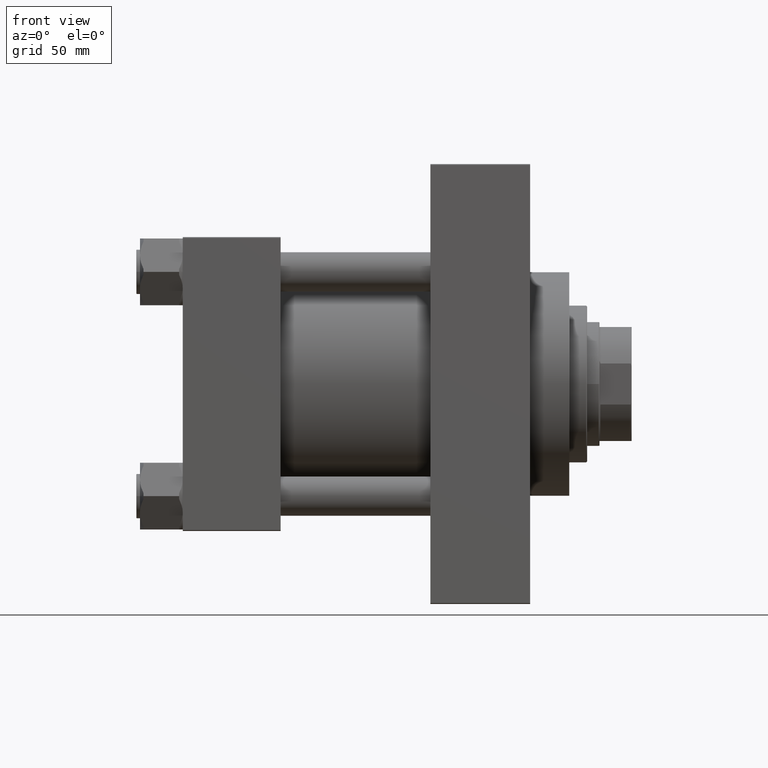
[diagram: clean part render]
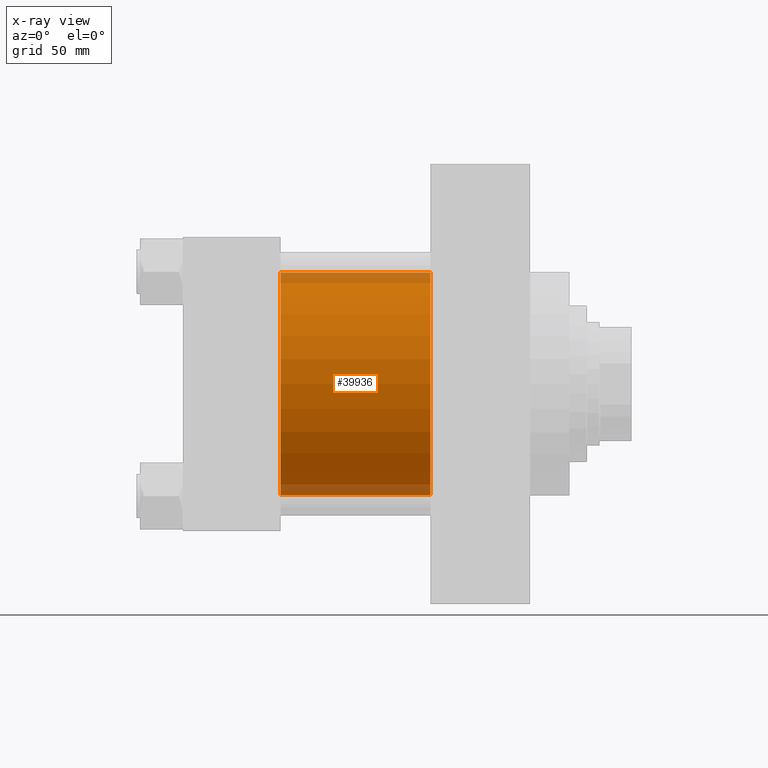
[diagram: x-ray — body ghosted, one internal face saturated and labeled with its STEP entity id]
A machine part, front view, then the same camera in x-ray: the body is ghosted and one INTERNAL B-rep face — a face not visible from any outside direction — is saturated and labeled: STEP entity #39936.
In plain terms, the highlighted cylindrical surface (partial cylindrical patch) has radius 62.5 mm, axis along (-1, -0, -0).
Its self-contained STEP definition (entity closure, byte-faithful):
#2816 = CARTESIAN_POINT ( 'NONE',  ( 139.0000000000000000, -2.602085213965210642E-15, 62.50000000000000000 ) ) ;
#3041 = AXIS2_PLACEMENT_3D ( 'NONE', #8400, #43503, #39206 ) ;
#3737 = VECTOR ( 'NONE', #32695, 1000.000000000000000 ) ;
#3802 = FACE_OUTER_BOUND ( 'NONE', #40365, .T. ) ;
#7901 = DIRECTION ( 'NONE',  ( 0.000000000000000000, 0.000000000000000000, -1.000000000000000000 ) ) ;
#8144 = DIRECTION ( 'NONE',  ( 1.000000000000000000, 0.000000000000000000, 0.000000000000000000 ) ) ;
#8400 = CARTESIAN_POINT ( 'NONE',  ( 139.0000000000000000, -2.602085213965210642E-15, 0.000000000000000000 ) ) ;
#8432 = VERTEX_POINT ( 'NONE', #29915 ) ;
#8459 = EDGE_CURVE ( 'NONE', #48823, #45499, #36817, .T. ) ;
#8594 = CYLINDRICAL_SURFACE ( 'NONE', #20697, 62.50000000000000000 ) ;
#12608 = CARTESIAN_POINT ( 'NONE',  ( 139.0000000000000000, 5.051957280705745584E-15, -62.50000000000000000 ) ) ;
#13247 = CARTESIAN_POINT ( 'NONE',  ( 139.0000000000000000, 5.051957280705745584E-15, -62.50000000000000000 ) ) ;
#13603 = CARTESIAN_POINT ( 'NONE',  ( 55.00000000000000000, -2.602085213965210642E-15, 62.50000000000000000 ) ) ;
#14129 = VERTEX_POINT ( 'NONE', #13603 ) ;
#15918 = VECTOR ( 'NONE', #18993, 1000.000000000000000 ) ;
#18993 = DIRECTION ( 'NONE',  ( -1.000000000000000000, -0.000000000000000000, -0.000000000000000000 ) ) ;
#19231 = DIRECTION ( 'NONE',  ( -1.000000000000000000, -0.000000000000000000, -0.000000000000000000 ) ) ;
#20697 = AXIS2_PLACEMENT_3D ( 'NONE', #46489, #19231, #46005 ) ;
#23170 = ORIENTED_EDGE ( 'NONE', *, *, #8459, .T. ) ;
#25043 = ORIENTED_EDGE ( 'NONE', *, *, #31951, .F. ) ;
#25576 = CIRCLE ( 'NONE', #42505, 62.50000000000000000 ) ;
#26719 = EDGE_CURVE ( 'NONE', #45499, #8432, #45059, .T. ) ;
#28221 = ORIENTED_EDGE ( 'NONE', *, *, #40898, .F. ) ;
#29915 = CARTESIAN_POINT ( 'NONE',  ( 55.00000000000000000, 5.051957280705745584E-15, -62.50000000000000000 ) ) ;
#30398 = CARTESIAN_POINT ( 'NONE',  ( 55.00000000000000000, -2.602085213965210642E-15, 0.000000000000000000 ) ) ;
#31951 = EDGE_CURVE ( 'NONE', #14129, #8432, #25576, .T. ) ;
#32695 = DIRECTION ( 'NONE',  ( -1.000000000000000000, -0.000000000000000000, -0.000000000000000000 ) ) ;
#34638 = CARTESIAN_POINT ( 'NONE',  ( 139.0000000000000000, -2.602085213965210642E-15, 62.50000000000000000 ) ) ;
#36817 = CIRCLE ( 'NONE', #3041, 62.50000000000000000 ) ;
#38626 = ORIENTED_EDGE ( 'NONE', *, *, #26719, .T. ) ;
#39206 = DIRECTION ( 'NONE',  ( 0.000000000000000000, 0.000000000000000000, -1.000000000000000000 ) ) ;
#39936 = ADVANCED_FACE ( 'NONE', ( #3802 ), #8594, .F. ) ;
#40365 = EDGE_LOOP ( 'NONE', ( #23170, #38626, #25043, #28221 ) ) ;
#40898 = EDGE_CURVE ( 'NONE', #48823, #14129, #41727, .T. ) ;
#41727 = LINE ( 'NONE', #2816, #15918 ) ;
#42505 = AXIS2_PLACEMENT_3D ( 'NONE', #30398, #8144, #7901 ) ;
#43503 = DIRECTION ( 'NONE',  ( 1.000000000000000000, 0.000000000000000000, 0.000000000000000000 ) ) ;
#45059 = LINE ( 'NONE', #13247, #3737 ) ;
#45499 = VERTEX_POINT ( 'NONE', #12608 ) ;
#46005 = DIRECTION ( 'NONE',  ( 0.000000000000000000, 0.000000000000000000, 1.000000000000000000 ) ) ;
#46489 = CARTESIAN_POINT ( 'NONE',  ( 139.0000000000000000, -2.602085213965210642E-15, 0.000000000000000000 ) ) ;
#48823 = VERTEX_POINT ( 'NONE', #34638 ) ;